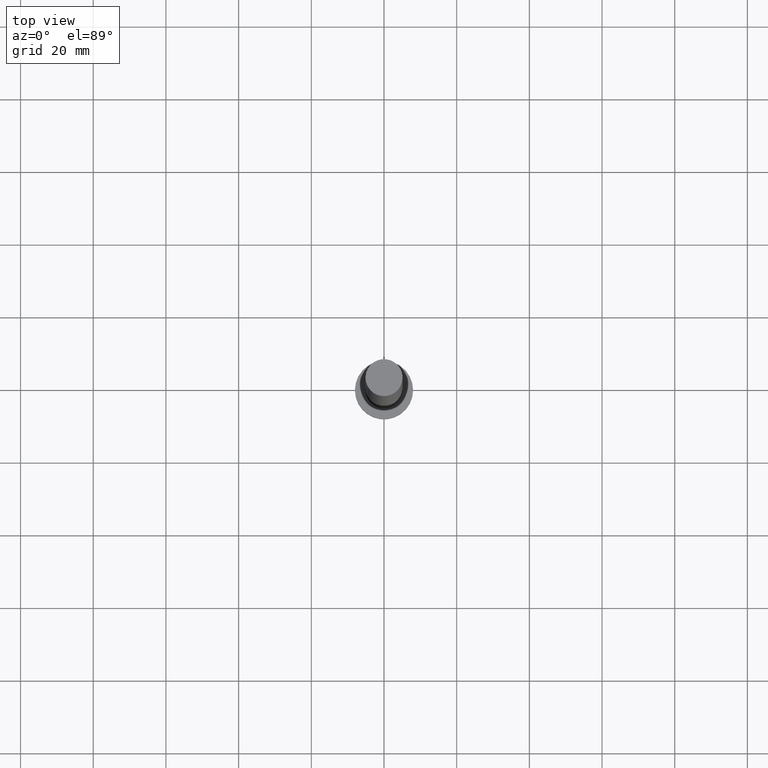
[diagram: clean part render]
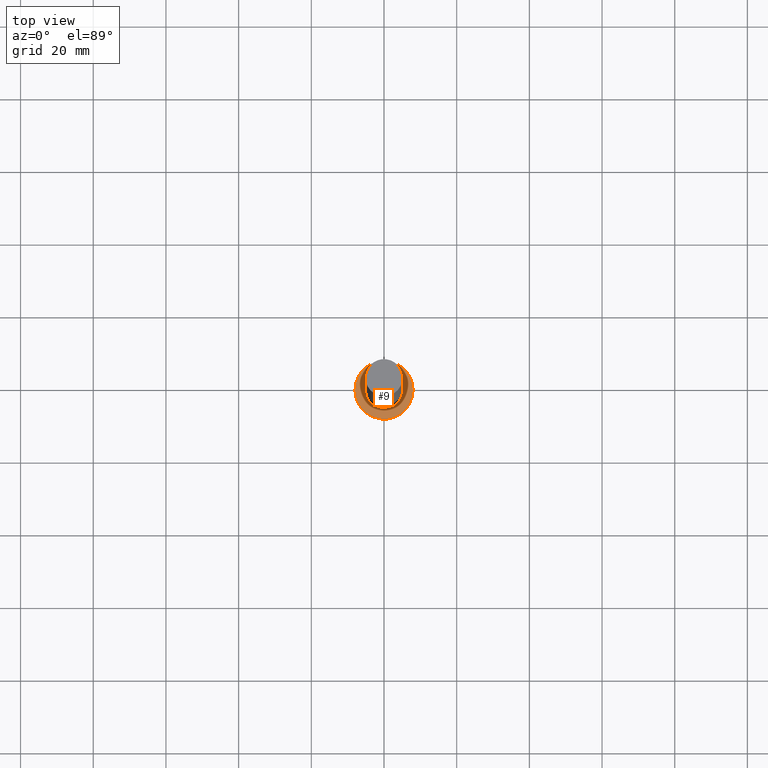
[diagram: same view with one face highlighted and labeled with its STEP entity id]
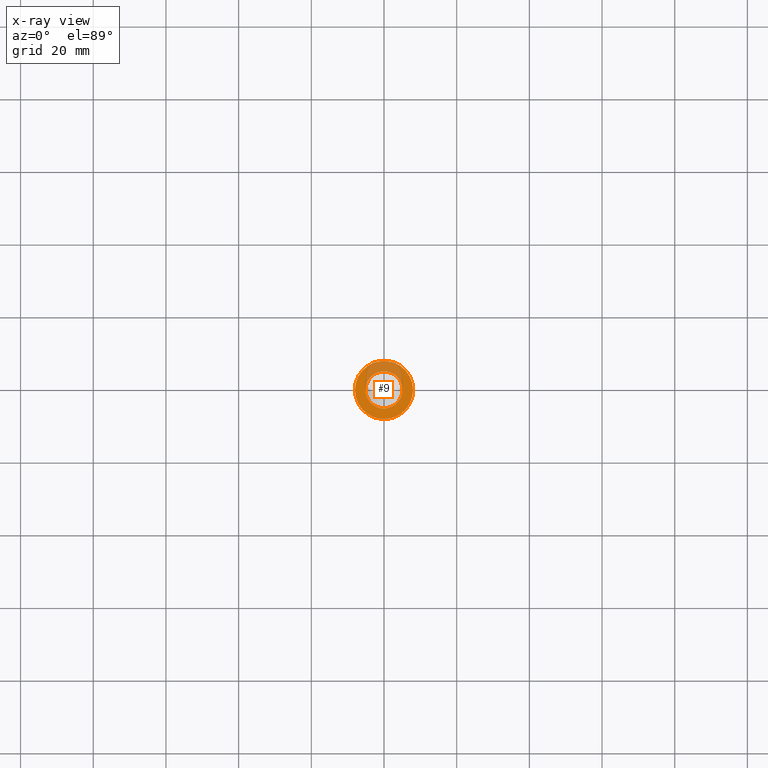
[diagram: x-ray of the same camera — body ghosted, the highlighted face saturated]
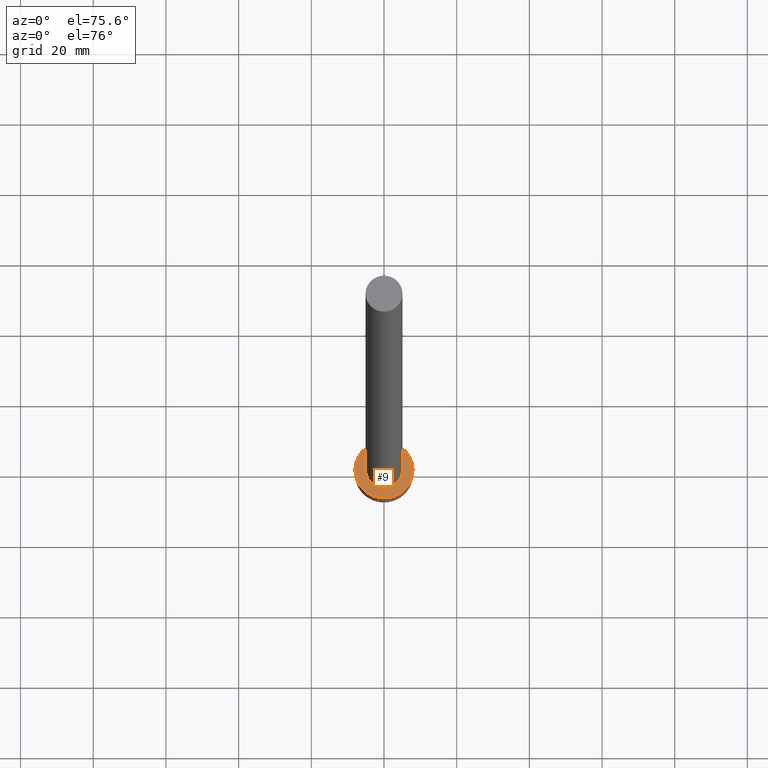
[diagram: same view with one face highlighted and labeled with its STEP entity id]
A machine part, top view. The second image highlights one B-rep face of the part: STEP entity #9.
The next image is the same camera in x-ray: the body ghosted, the highlighted face saturated — about 27% of this face is hidden behind the body in this view.
A second angle (auxiliary view) of the same face is appended — the face is thin or edge-on in the first view.
In plain terms, the highlighted planar face has unit normal (0, 0, 1).
Its self-contained STEP definition (entity closure, byte-faithful):
#6 = EDGE_LOOP ( 'NONE', ( #43, #107 ) ) ;
#9 = ADVANCED_FACE ( 'NONE', ( #93, #91 ), #162, .T. ) ;
#12 = CARTESIAN_POINT ( 'NONE',  ( 0.000000000000000000, 0.000000000000000000, 5.000000000000000000 ) ) ;
#17 = DIRECTION ( 'NONE',  ( 0.000000000000000000, 0.000000000000000000, 1.000000000000000000 ) ) ;
#18 = DIRECTION ( 'NONE',  ( 1.000000000000000000, 0.000000000000000000, 0.000000000000000000 ) ) ;
#19 = ORIENTED_EDGE ( 'NONE', *, *, #105, .F. ) ;
#20 = AXIS2_PLACEMENT_3D ( 'NONE', #12, #94, #18 ) ;
#41 = ORIENTED_EDGE ( 'NONE', *, *, #252, .F. ) ;
#42 = CARTESIAN_POINT ( 'NONE',  ( 0.000000000000000000, 0.000000000000000000, 5.000000000000000000 ) ) ;
#43 = ORIENTED_EDGE ( 'NONE', *, *, #216, .T. ) ;
#52 = CIRCLE ( 'NONE', #240, 8.000000000000000000 ) ;
#56 = DIRECTION ( 'NONE',  ( 1.000000000000000000, 0.000000000000000000, 0.000000000000000000 ) ) ;
#58 = CIRCLE ( 'NONE', #215, 8.000000000000000000 ) ;
#72 = DIRECTION ( 'NONE',  ( 0.000000000000000000, 0.000000000000000000, 1.000000000000000000 ) ) ;
#75 = CARTESIAN_POINT ( 'NONE',  ( 5.100000000000001421, 6.245698675651502811E-16, 5.000000000000000000 ) ) ;
#87 = AXIS2_PLACEMENT_3D ( 'NONE', #96, #141, #160 ) ;
#91 = FACE_OUTER_BOUND ( 'NONE', #6, .T. ) ;
#93 = FACE_BOUND ( 'NONE', #255, .T. ) ;
#94 = DIRECTION ( 'NONE',  ( 0.000000000000000000, 0.000000000000000000, 1.000000000000000000 ) ) ;
#96 = CARTESIAN_POINT ( 'NONE',  ( 0.000000000000000000, 0.000000000000000000, 5.000000000000000000 ) ) ;
#105 = EDGE_CURVE ( 'NONE', #218, #192, #178, .T. ) ;
#107 = ORIENTED_EDGE ( 'NONE', *, *, #243, .T. ) ;
#118 = CARTESIAN_POINT ( 'NONE',  ( 0.000000000000000000, 0.000000000000000000, 5.000000000000000000 ) ) ;
#119 = CARTESIAN_POINT ( 'NONE',  ( -5.100000000000001421, 0.000000000000000000, 5.000000000000000000 ) ) ;
#137 = CIRCLE ( 'NONE', #20, 5.100000000000001421 ) ;
#141 = DIRECTION ( 'NONE',  ( 0.000000000000000000, 0.000000000000000000, 1.000000000000000000 ) ) ;
#145 = DIRECTION ( 'NONE',  ( 1.000000000000000000, 0.000000000000000000, -0.000000000000000000 ) ) ;
#160 = DIRECTION ( 'NONE',  ( 1.000000000000000000, 0.000000000000000000, 0.000000000000000000 ) ) ;
#162 = PLANE ( 'NONE',  #222 ) ;
#178 = CIRCLE ( 'NONE', #87, 5.100000000000001421 ) ;
#192 = VERTEX_POINT ( 'NONE', #75 ) ;
#195 = CARTESIAN_POINT ( 'NONE',  ( 8.000000000000000000, 9.797174393178825657E-16, 5.000000000000000000 ) ) ;
#201 = VERTEX_POINT ( 'NONE', #220 ) ;
#203 = VERTEX_POINT ( 'NONE', #195 ) ;
#204 = DIRECTION ( 'NONE',  ( 1.000000000000000000, 0.000000000000000000, 0.000000000000000000 ) ) ;
#215 = AXIS2_PLACEMENT_3D ( 'NONE', #42, #72, #56 ) ;
#216 = EDGE_CURVE ( 'NONE', #201, #203, #58, .T. ) ;
#218 = VERTEX_POINT ( 'NONE', #119 ) ;
#220 = CARTESIAN_POINT ( 'NONE',  ( -8.000000000000000000, 0.000000000000000000, 5.000000000000000000 ) ) ;
#222 = AXIS2_PLACEMENT_3D ( 'NONE', #118, #242, #145 ) ;
#239 = CARTESIAN_POINT ( 'NONE',  ( 0.000000000000000000, 0.000000000000000000, 5.000000000000000000 ) ) ;
#240 = AXIS2_PLACEMENT_3D ( 'NONE', #239, #17, #204 ) ;
#242 = DIRECTION ( 'NONE',  ( 0.000000000000000000, 0.000000000000000000, 1.000000000000000000 ) ) ;
#243 = EDGE_CURVE ( 'NONE', #203, #201, #52, .T. ) ;
#252 = EDGE_CURVE ( 'NONE', #192, #218, #137, .T. ) ;
#255 = EDGE_LOOP ( 'NONE', ( #19, #41 ) ) ;